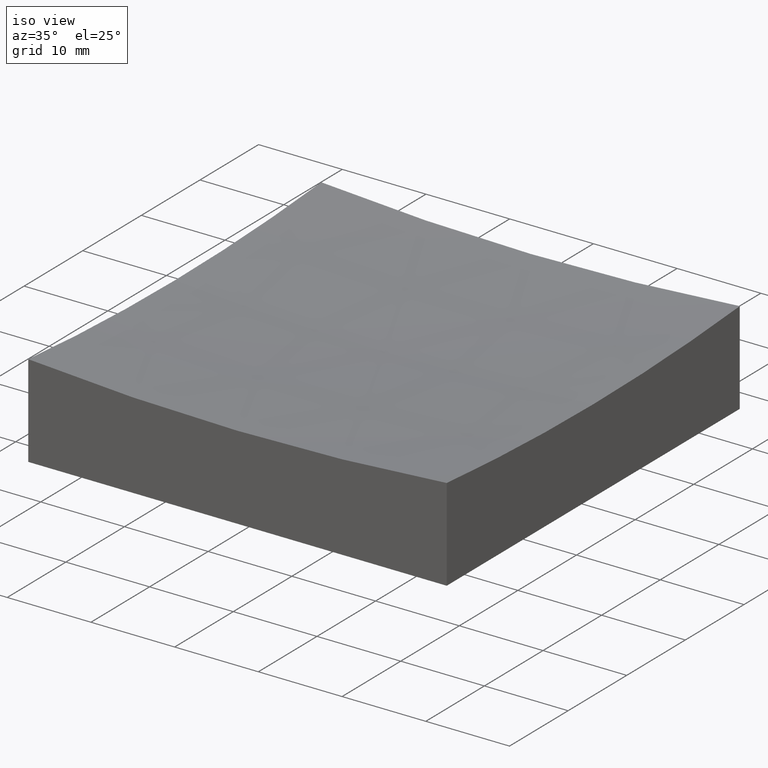
[diagram: clean part render]
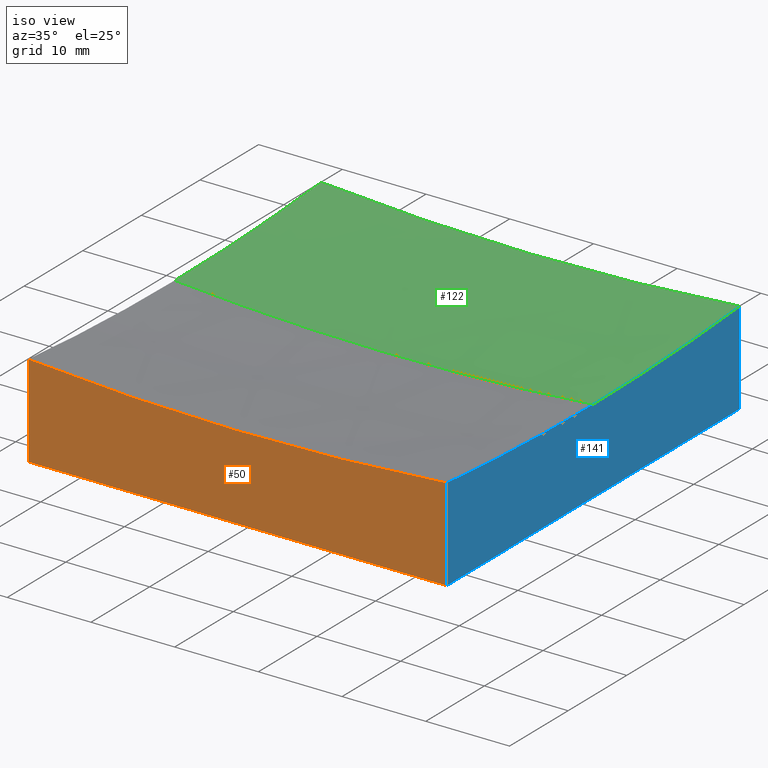
[diagram: same view with three faces highlighted in distinct colors, each labeled with its STEP entity id]
A machine part, iso view with three faces highlighted in distinct colors.
Their STEP definitions:

[orange] entity #50 — the highlighted planar face has unit normal (0, 1, 0).
#21 = CARTESIAN_POINT ( 'NONE',  ( 3.784158609365321758E-14, -25.00000000000000711, 309.0000000000000000 ) ) ;
#25 = LINE ( 'NONE', #95, #191 ) ;
#27 = CARTESIAN_POINT ( 'NONE',  ( -25.00000000000000000, -25.00000000000000711, 50.00000000000000000 ) ) ;
#28 = DIRECTION ( 'NONE',  ( -0.0000000000000000000, -0.0000000000000000000, -1.000000000000000000 ) ) ;
#31 = EDGE_CURVE ( 'NONE', #155, #214, #158, .T. ) ;
#39 = PLANE ( 'NONE',  #59 ) ;
#50 = ADVANCED_FACE ( 'NONE', ( #213 ), #39, .F. ) ;
#51 = AXIS2_PLACEMENT_3D ( 'NONE', #21, #109, #90 ) ;
#59 = AXIS2_PLACEMENT_3D ( 'NONE', #88, #195, #172 ) ;
#62 = EDGE_CURVE ( 'NONE', #188, #219, #148, .T. ) ;
#88 = CARTESIAN_POINT ( 'NONE',  ( -25.00000000000000000, -25.00000000000000711, 50.00000000000000000 ) ) ;
#90 = DIRECTION ( 'NONE',  ( 0.0000000000000000000, 0.0000000000000000000, 1.000000000000000000 ) ) ;
#95 = CARTESIAN_POINT ( 'NONE',  ( 25.00000000000000000, -25.00000000000000711, 50.00000000000000000 ) ) ;
#97 = CARTESIAN_POINT ( 'NONE',  ( -25.00000000000000000, -25.00000000000000711, 0.0000000000000000000 ) ) ;
#100 = ORIENTED_EDGE ( 'NONE', *, *, #165, .F. ) ;
#101 = VECTOR ( 'NONE', #134, 1000.000000000000000 ) ;
#102 = ORIENTED_EDGE ( 'NONE', *, *, #185, .T. ) ;
#109 = DIRECTION ( 'NONE',  ( 0.0000000000000000000, 1.000000000000000000, 0.0000000000000000000 ) ) ;
#134 = DIRECTION ( 'NONE',  ( 1.000000000000000000, 0.0000000000000000000, 0.0000000000000000000 ) ) ;
#148 = LINE ( 'NONE', #150, #101 ) ;
#150 = CARTESIAN_POINT ( 'NONE',  ( -25.00000000000000000, -25.00000000000000711, 0.0000000000000000000 ) ) ;
#152 = EDGE_LOOP ( 'NONE', ( #100, #224, #102, #240 ) ) ;
#155 = VERTEX_POINT ( 'NONE', #209 ) ;
#158 = CIRCLE ( 'NONE', #51, 298.9565185775348368 ) ;
#161 = DIRECTION ( 'NONE',  ( -0.0000000000000000000, -0.0000000000000000000, -1.000000000000000000 ) ) ;
#165 = EDGE_CURVE ( 'NONE', #155, #219, #25, .T. ) ;
#172 = DIRECTION ( 'NONE',  ( 0.0000000000000000000, -0.0000000000000000000, 1.000000000000000000 ) ) ;
#185 = EDGE_CURVE ( 'NONE', #214, #188, #208, .T. ) ;
#188 = VERTEX_POINT ( 'NONE', #97 ) ;
#191 = VECTOR ( 'NONE', #161, 1000.000000000000000 ) ;
#195 = DIRECTION ( 'NONE',  ( 0.0000000000000000000, 1.000000000000000000, 0.0000000000000000000 ) ) ;
#198 = CARTESIAN_POINT ( 'NONE',  ( -25.00000000000000000, -25.00000000000000711, 11.09061780467546221 ) ) ;
#208 = LINE ( 'NONE', #27, #251 ) ;
#209 = CARTESIAN_POINT ( 'NONE',  ( 25.00000000000000000, -25.00000000000000711, 11.09061780467546221 ) ) ;
#213 = FACE_OUTER_BOUND ( 'NONE', #152, .T. ) ;
#214 = VERTEX_POINT ( 'NONE', #198 ) ;
#219 = VERTEX_POINT ( 'NONE', #249 ) ;
#224 = ORIENTED_EDGE ( 'NONE', *, *, #31, .T. ) ;
#240 = ORIENTED_EDGE ( 'NONE', *, *, #62, .T. ) ;
#249 = CARTESIAN_POINT ( 'NONE',  ( 25.00000000000000000, -25.00000000000000711, 0.0000000000000000000 ) ) ;
#251 = VECTOR ( 'NONE', #28, 1000.000000000000000 ) ;

[blue] entity #141 — the highlighted planar face has unit normal (1, 0, -0).
#6 = FACE_OUTER_BOUND ( 'NONE', #11, .T. ) ;
#8 = ORIENTED_EDGE ( 'NONE', *, *, #233, .F. ) ;
#11 = EDGE_LOOP ( 'NONE', ( #127, #74, #135, #8, #23 ) ) ;
#16 = DIRECTION ( 'NONE',  ( 6.938893903907228378E-17, -1.000000000000000000, 0.0000000000000000000 ) ) ;
#23 = ORIENTED_EDGE ( 'NONE', *, *, #54, .F. ) ;
#25 = LINE ( 'NONE', #95, #191 ) ;
#33 = EDGE_CURVE ( 'NONE', #96, #219, #231, .T. ) ;
#49 = PLANE ( 'NONE',  #171 ) ;
#52 = CIRCLE ( 'NONE', #210, 298.9565185775348368 ) ;
#54 = EDGE_CURVE ( 'NONE', #245, #189, #98, .T. ) ;
#74 = ORIENTED_EDGE ( 'NONE', *, *, #165, .T. ) ;
#77 = DIRECTION ( 'NONE',  ( -6.938893903907228378E-17, 1.000000000000000000, 0.0000000000000000000 ) ) ;
#80 = CARTESIAN_POINT ( 'NONE',  ( 24.99999999999999645, 24.99999999999999645, 11.09061780467546221 ) ) ;
#85 = CARTESIAN_POINT ( 'NONE',  ( 24.99999999999999645, 1.734723475976804333E-15, 309.0000000000000000 ) ) ;
#87 = DIRECTION ( 'NONE',  ( -0.0000000000000000000, -0.0000000000000000000, -1.000000000000000000 ) ) ;
#92 = VECTOR ( 'NONE', #87, 1000.000000000000000 ) ;
#95 = CARTESIAN_POINT ( 'NONE',  ( 25.00000000000000000, -25.00000000000000711, 50.00000000000000000 ) ) ;
#96 = VERTEX_POINT ( 'NONE', #114 ) ;
#98 = CIRCLE ( 'NONE', #176, 298.9565185775348368 ) ;
#105 = DIRECTION ( 'NONE',  ( 1.000000000000000000, 6.938893903907228378E-17, -0.0000000000000000000 ) ) ;
#107 = CARTESIAN_POINT ( 'NONE',  ( 24.99999999999999645, 1.734723475976804333E-15, 309.0000000000000000 ) ) ;
#114 = CARTESIAN_POINT ( 'NONE',  ( 24.99999999999999645, 24.99999999999999645, 0.0000000000000000000 ) ) ;
#124 = DIRECTION ( 'NONE',  ( -6.963113502515198163E-17, 1.000000000000000000, 0.0000000000000000000 ) ) ;
#127 = ORIENTED_EDGE ( 'NONE', *, *, #241, .F. ) ;
#133 = CARTESIAN_POINT ( 'NONE',  ( 24.99999999999999645, 24.99999999999999645, 50.00000000000000000 ) ) ;
#135 = ORIENTED_EDGE ( 'NONE', *, *, #33, .F. ) ;
#140 = VECTOR ( 'NONE', #16, 1000.000000000000000 ) ;
#141 = ADVANCED_FACE ( 'NONE', ( #6 ), #49, .T. ) ;
#144 = LINE ( 'NONE', #247, #92 ) ;
#155 = VERTEX_POINT ( 'NONE', #209 ) ;
#161 = DIRECTION ( 'NONE',  ( -0.0000000000000000000, -0.0000000000000000000, -1.000000000000000000 ) ) ;
#165 = EDGE_CURVE ( 'NONE', #155, #219, #25, .T. ) ;
#170 = CARTESIAN_POINT ( 'NONE',  ( 24.99999999999999645, -9.629649721936179265E-32, 10.04348142246513831 ) ) ;
#171 = AXIS2_PLACEMENT_3D ( 'NONE', #133, #238, #77 ) ;
#176 = AXIS2_PLACEMENT_3D ( 'NONE', #107, #234, #252 ) ;
#189 = VERTEX_POINT ( 'NONE', #80 ) ;
#191 = VECTOR ( 'NONE', #161, 1000.000000000000000 ) ;
#197 = CARTESIAN_POINT ( 'NONE',  ( 24.99999999999999645, 24.99999999999999645, 0.0000000000000000000 ) ) ;
#209 = CARTESIAN_POINT ( 'NONE',  ( 25.00000000000000000, -25.00000000000000711, 11.09061780467546221 ) ) ;
#210 = AXIS2_PLACEMENT_3D ( 'NONE', #85, #105, #124 ) ;
#219 = VERTEX_POINT ( 'NONE', #249 ) ;
#231 = LINE ( 'NONE', #197, #140 ) ;
#233 = EDGE_CURVE ( 'NONE', #189, #96, #144, .T. ) ;
#234 = DIRECTION ( 'NONE',  ( 1.000000000000000000, 6.938893903907228378E-17, -0.0000000000000000000 ) ) ;
#238 = DIRECTION ( 'NONE',  ( 1.000000000000000000, 6.938893903907228378E-17, -0.0000000000000000000 ) ) ;
#241 = EDGE_CURVE ( 'NONE', #155, #245, #52, .T. ) ;
#245 = VERTEX_POINT ( 'NONE', #170 ) ;
#247 = CARTESIAN_POINT ( 'NONE',  ( 24.99999999999999645, 24.99999999999999645, 50.00000000000000000 ) ) ;
#249 = CARTESIAN_POINT ( 'NONE',  ( 25.00000000000000000, -25.00000000000000711, 0.0000000000000000000 ) ) ;
#252 = DIRECTION ( 'NONE',  ( -6.963113502515198163E-17, 1.000000000000000000, 0.0000000000000000000 ) ) ;

[green] entity #122 — the highlighted spherical surface has radius 300 mm.
#1 = ORIENTED_EDGE ( 'NONE', *, *, #73, .T. ) ;
#3 = AXIS2_PLACEMENT_3D ( 'NONE', #153, #94, #178 ) ;
#7 = DIRECTION ( 'NONE',  ( -0.0000000000000000000, 1.000000000000000000, 0.0000000000000000000 ) ) ;
#9 = DIRECTION ( 'NONE',  ( 0.0000000000000000000, 1.000000000000000000, 0.0000000000000000000 ) ) ;
#13 = AXIS2_PLACEMENT_3D ( 'NONE', #236, #9, #46 ) ;
#19 = CARTESIAN_POINT ( 'NONE',  ( -25.00000000000000711, 24.99999999999999645, 11.09061780467546221 ) ) ;
#30 = ORIENTED_EDGE ( 'NONE', *, *, #36, .F. ) ;
#36 = EDGE_CURVE ( 'NONE', #164, #212, #183, .T. ) ;
#42 = AXIS2_PLACEMENT_3D ( 'NONE', #136, #7, #207 ) ;
#46 = DIRECTION ( 'NONE',  ( 0.0000000000000000000, 0.0000000000000000000, 1.000000000000000000 ) ) ;
#47 = DIRECTION ( 'NONE',  ( 0.0000000000000000000, 0.0000000000000000000, -1.000000000000000000 ) ) ;
#54 = EDGE_CURVE ( 'NONE', #245, #189, #98, .T. ) ;
#55 = AXIS2_PLACEMENT_3D ( 'NONE', #157, #60, #47 ) ;
#57 = SPHERICAL_SURFACE ( 'NONE', #42, 299.9999999999999432 ) ;
#58 = CARTESIAN_POINT ( 'NONE',  ( -25.00000000000000355, 3.061616997868399214E-15, 10.04348142246513831 ) ) ;
#60 = DIRECTION ( 'NONE',  ( 0.0000000000000000000, -1.000000000000000000, 0.0000000000000000000 ) ) ;
#73 = EDGE_CURVE ( 'NONE', #189, #212, #239, .T. ) ;
#79 = ORIENTED_EDGE ( 'NONE', *, *, #137, .F. ) ;
#80 = CARTESIAN_POINT ( 'NONE',  ( 24.99999999999999645, 24.99999999999999645, 11.09061780467546221 ) ) ;
#94 = DIRECTION ( 'NONE',  ( 1.224646799147353207E-16, 1.000000000000000000, 3.574777501448733644E-32 ) ) ;
#98 = CIRCLE ( 'NONE', #176, 298.9565185775348368 ) ;
#107 = CARTESIAN_POINT ( 'NONE',  ( 24.99999999999999645, 1.734723475976804333E-15, 309.0000000000000000 ) ) ;
#111 = EDGE_LOOP ( 'NONE', ( #79, #129, #160, #1, #30 ) ) ;
#113 = CARTESIAN_POINT ( 'NONE',  ( 1.437821085967289657E-13, 0.0000000000000000000, 9.000000000000063949 ) ) ;
#122 = ADVANCED_FACE ( 'NONE', ( #221 ), #57, .F. ) ;
#129 = ORIENTED_EDGE ( 'NONE', *, *, #180, .T. ) ;
#136 = CARTESIAN_POINT ( 'NONE',  ( 3.784158609365321758E-14, 0.0000000000000000000, 309.0000000000000000 ) ) ;
#137 = EDGE_CURVE ( 'NONE', #151, #164, #163, .T. ) ;
#145 = CIRCLE ( 'NONE', #55, 299.9999999999999432 ) ;
#151 = VERTEX_POINT ( 'NONE', #113 ) ;
#153 = CARTESIAN_POINT ( 'NONE',  ( 3.784158609365321758E-14, 0.0000000000000000000, 309.0000000000000000 ) ) ;
#157 = CARTESIAN_POINT ( 'NONE',  ( 3.784158609365321758E-14, 0.0000000000000000000, 309.0000000000000000 ) ) ;
#160 = ORIENTED_EDGE ( 'NONE', *, *, #54, .T. ) ;
#163 = CIRCLE ( 'NONE', #3, 299.9999999999999432 ) ;
#164 = VERTEX_POINT ( 'NONE', #58 ) ;
#169 = DIRECTION ( 'NONE',  ( -6.963113502515198163E-17, 1.000000000000000000, 0.0000000000000000000 ) ) ;
#170 = CARTESIAN_POINT ( 'NONE',  ( 24.99999999999999645, -9.629649721936179265E-32, 10.04348142246513831 ) ) ;
#173 = CARTESIAN_POINT ( 'NONE',  ( -25.00000000000000355, -1.734723475976810250E-15, 309.0000000000000000 ) ) ;
#176 = AXIS2_PLACEMENT_3D ( 'NONE', #107, #234, #252 ) ;
#178 = DIRECTION ( 'NONE',  ( -1.000000000000000000, 1.224646799147353207E-16, 0.0000000000000000000 ) ) ;
#180 = EDGE_CURVE ( 'NONE', #151, #245, #145, .T. ) ;
#183 = CIRCLE ( 'NONE', #229, 298.9565185775348368 ) ;
#189 = VERTEX_POINT ( 'NONE', #80 ) ;
#207 = DIRECTION ( 'NONE',  ( 1.000000000000000000, 0.0000000000000000000, 3.700743415417189125E-16 ) ) ;
#212 = VERTEX_POINT ( 'NONE', #19 ) ;
#217 = DIRECTION ( 'NONE',  ( 1.000000000000000000, 6.938893903907228378E-17, -0.0000000000000000000 ) ) ;
#221 = FACE_OUTER_BOUND ( 'NONE', #111, .T. ) ;
#229 = AXIS2_PLACEMENT_3D ( 'NONE', #173, #217, #169 ) ;
#234 = DIRECTION ( 'NONE',  ( 1.000000000000000000, 6.938893903907228378E-17, -0.0000000000000000000 ) ) ;
#236 = CARTESIAN_POINT ( 'NONE',  ( 3.784158609365321758E-14, 24.99999999999999645, 309.0000000000000000 ) ) ;
#239 = CIRCLE ( 'NONE', #13, 298.9565185775348368 ) ;
#245 = VERTEX_POINT ( 'NONE', #170 ) ;
#252 = DIRECTION ( 'NONE',  ( -6.963113502515198163E-17, 1.000000000000000000, 0.0000000000000000000 ) ) ;